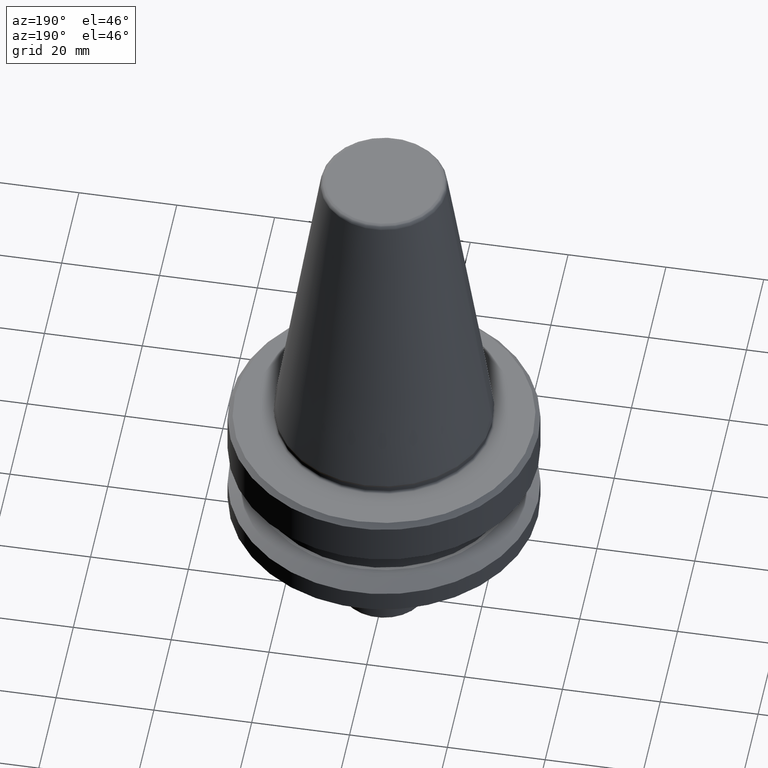
[diagram: clean part render]
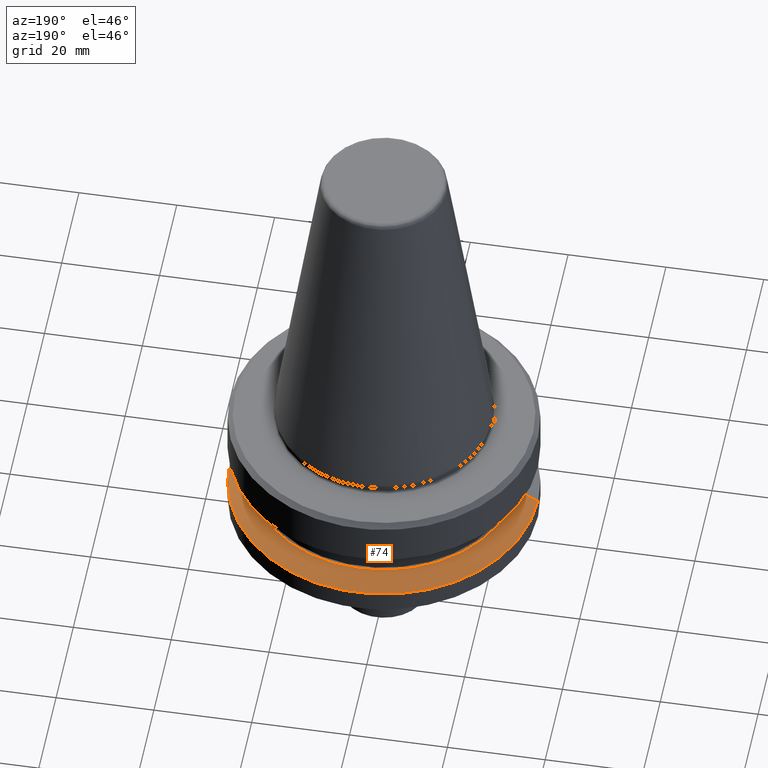
[diagram: same view with one face highlighted and labeled with its STEP entity id]
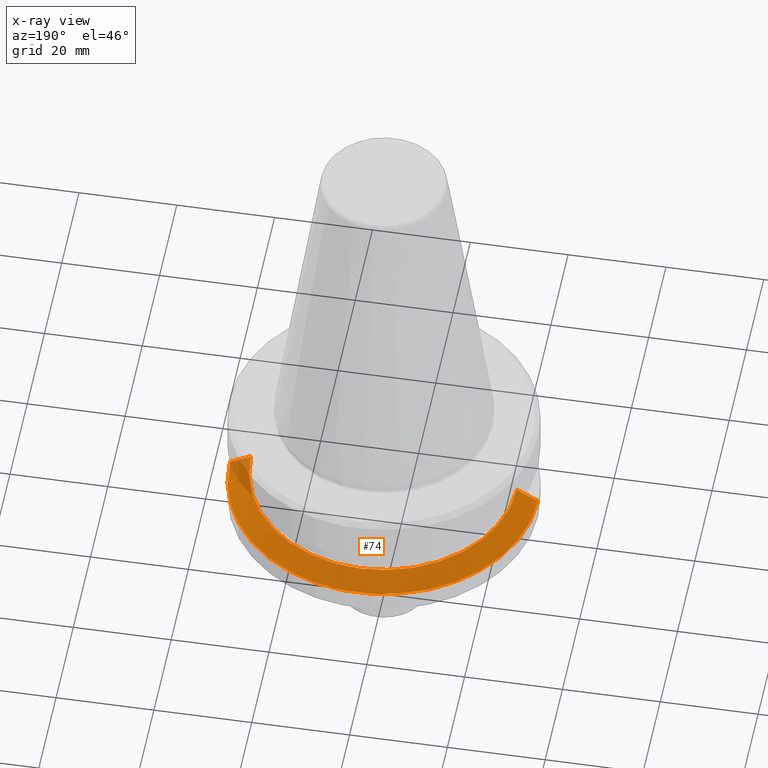
[diagram: x-ray of the same camera — body ghosted, the highlighted face saturated]
A machine part, auxiliary view. The second image highlights one B-rep face of the part: STEP entity #74.
The next image is the same camera in x-ray: the body ghosted, the highlighted face saturated — about 5% of this face is hidden behind the body in this view.
In plain terms, the highlighted conical surface has half-angle 60 deg.
Its self-contained STEP definition (entity closure, byte-faithful):
#39 = ORIENTED_EDGE ( 'NONE', *, *, #954, .F. ) ;
#41 = CONICAL_SURFACE ( 'NONE', #249, 31.50000000000008500, 1.047197551196587000 ) ;
#69 = EDGE_CURVE ( 'NONE', #1013, #590, #328, .T. ) ;
#74 = ADVANCED_FACE ( 'NONE', ( #931 ), #41, .T. ) ;
#90 = EDGE_CURVE ( 'NONE', #590, #477, #256, .T. ) ;
#96 = DIRECTION ( 'NONE',  ( 1.000000000000000000, 0.0000000000000000000, 0.0000000000000000000 ) ) ;
#108 = DIRECTION ( 'NONE',  ( -0.0000000000000000000, -0.0000000000000000000, 1.000000000000000000 ) ) ;
#118 = DIRECTION ( 'NONE',  ( -1.000000000000000000, 0.0000000000000000000, 0.0000000000000000000 ) ) ;
#149 = DIRECTION ( 'NONE',  ( -0.8660254037844332700, 0.0000000000000000000, -0.5000000000000093300 ) ) ;
#249 = AXIS2_PLACEMENT_3D ( 'NONE', #784, #865, #118 ) ;
#256 = CIRCLE ( 'NONE', #581, 31.50000000000008500 ) ;
#263 = ORIENTED_EDGE ( 'NONE', *, *, #90, .T. ) ;
#273 = CARTESIAN_POINT ( 'NONE',  ( 0.0000000000000000000, 0.0000000000000000000, -84.50000000000068200 ) ) ;
#282 = DIRECTION ( 'NONE',  ( -0.0000000000000000000, -0.0000000000000000000, 1.000000000000000000 ) ) ;
#284 = VECTOR ( 'NONE', #289, 1000.000000000000000 ) ;
#289 = DIRECTION ( 'NONE',  ( 0.8660254037844332700, 1.060575238724900300E-016, -0.5000000000000093300 ) ) ;
#305 = EDGE_LOOP ( 'NONE', ( #39, #882, #263, #793 ) ) ;
#328 = LINE ( 'NONE', #594, #284 ) ;
#440 = VECTOR ( 'NONE', #149, 1000.000000000000000 ) ;
#477 = VERTEX_POINT ( 'NONE', #961 ) ;
#494 = EDGE_CURVE ( 'NONE', #596, #477, #679, .T. ) ;
#501 = CARTESIAN_POINT ( 'NONE',  ( 27.16962701892256100, 3.592478546794633900E-015, -84.50000000000068200 ) ) ;
#513 = CIRCLE ( 'NONE', #634, 27.16962701892256100 ) ;
#581 = AXIS2_PLACEMENT_3D ( 'NONE', #780, #108, #96 ) ;
#590 = VERTEX_POINT ( 'NONE', #858 ) ;
#594 = CARTESIAN_POINT ( 'NONE',  ( 31.50000000000008500, 3.857637417314172900E-015, -87.00014200631733300 ) ) ;
#596 = VERTEX_POINT ( 'NONE', #887 ) ;
#634 = AXIS2_PLACEMENT_3D ( 'NONE', #273, #282, #749 ) ;
#679 = LINE ( 'NONE', #715, #440 ) ;
#715 = CARTESIAN_POINT ( 'NONE',  ( -31.50000000000008500, 0.0000000000000000000, -87.00014200631733300 ) ) ;
#749 = DIRECTION ( 'NONE',  ( 1.000000000000000000, 0.0000000000000000000, 0.0000000000000000000 ) ) ;
#780 = CARTESIAN_POINT ( 'NONE',  ( 0.0000000000000000000, 0.0000000000000000000, -87.00014200631733300 ) ) ;
#784 = CARTESIAN_POINT ( 'NONE',  ( 0.0000000000000000000, 0.0000000000000000000, -87.00014200631733300 ) ) ;
#793 = ORIENTED_EDGE ( 'NONE', *, *, #494, .F. ) ;
#858 = CARTESIAN_POINT ( 'NONE',  ( 31.50000000000008500, 0.0000000000000000000, -87.00014200631733300 ) ) ;
#865 = DIRECTION ( 'NONE',  ( 0.0000000000000000000, 0.0000000000000000000, -1.000000000000000000 ) ) ;
#882 = ORIENTED_EDGE ( 'NONE', *, *, #69, .T. ) ;
#887 = CARTESIAN_POINT ( 'NONE',  ( -27.16962701892256100, 0.0000000000000000000, -84.50000000000068200 ) ) ;
#931 = FACE_OUTER_BOUND ( 'NONE', #305, .T. ) ;
#954 = EDGE_CURVE ( 'NONE', #1013, #596, #513, .T. ) ;
#961 = CARTESIAN_POINT ( 'NONE',  ( -31.50000000000008500, 3.857637417314172900E-015, -87.00014200631733300 ) ) ;
#1013 = VERTEX_POINT ( 'NONE', #501 ) ;